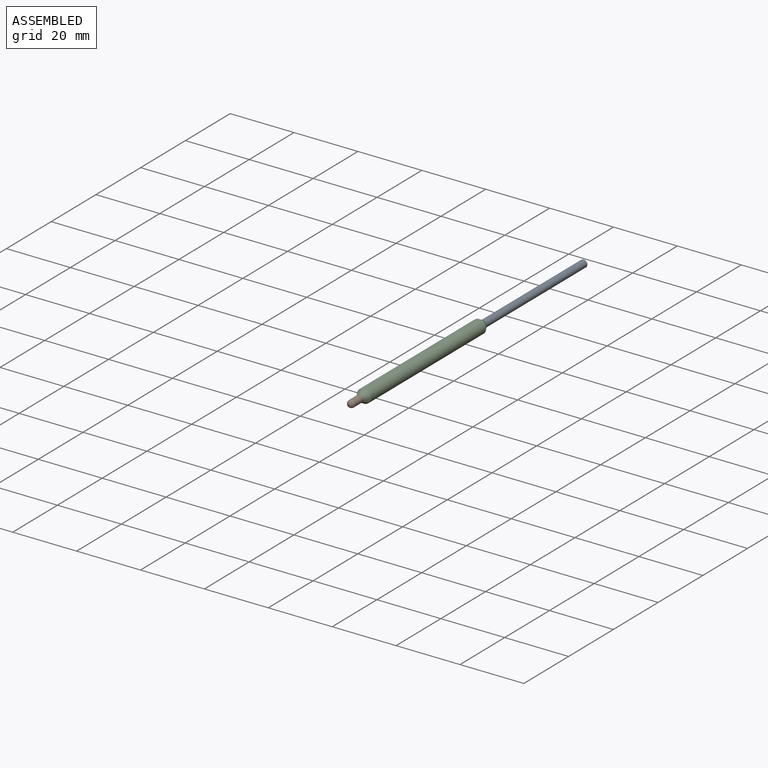
[diagram: assembled view]
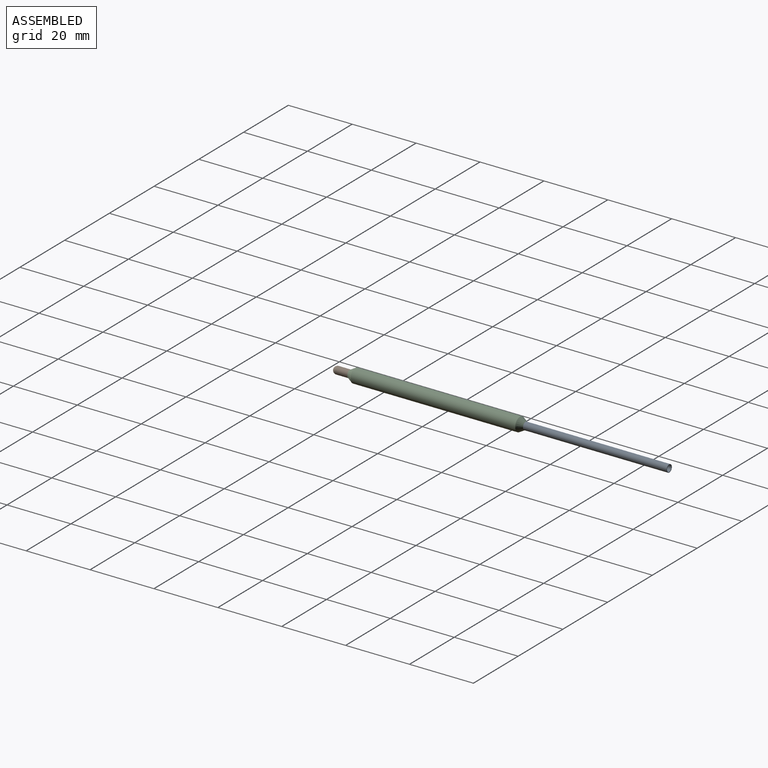
[diagram: assembled view, second angle]
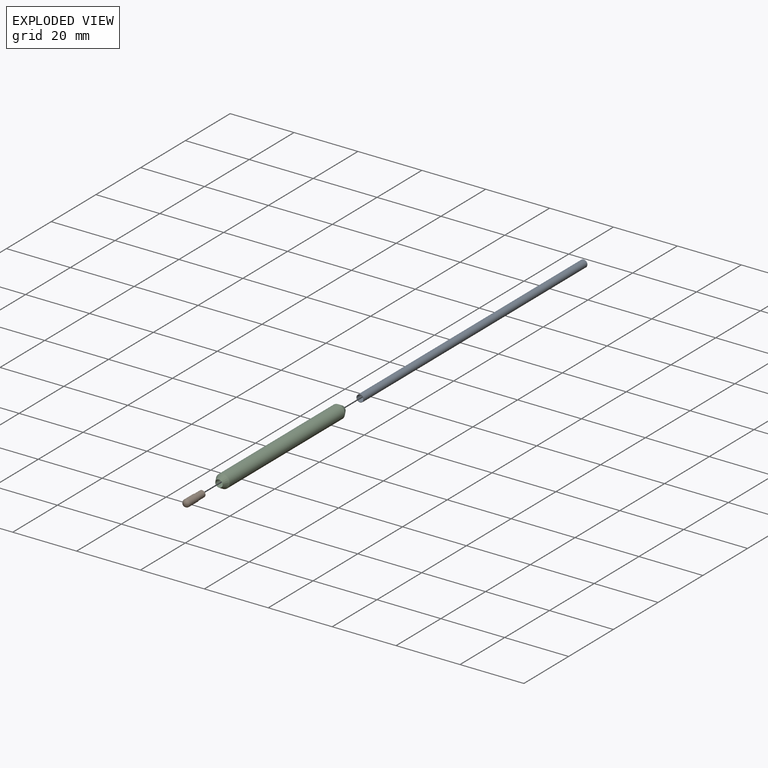
[diagram: exploded view]
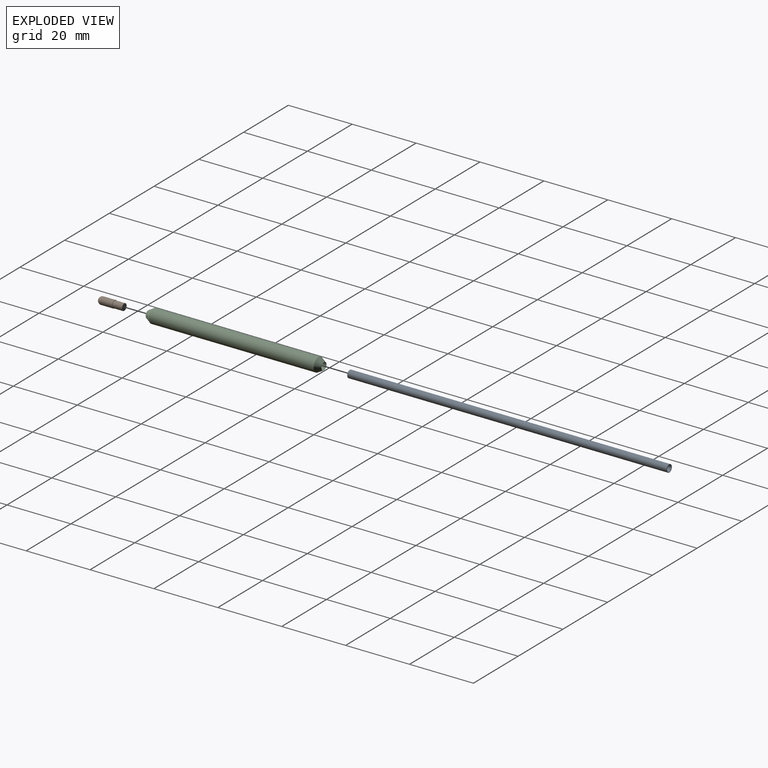
[diagram: exploded view, second angle]
ASSEMBLY  parts=3 mates=2
PART A: 4 faces, bbox 2.3x100x2.3 mm
  f0: cylinder r=1mm len=100mm, axis (0,1,0), area 628.3mm2, adj f2,f3
  f1: cylinder r=1.15mm len=100mm, axis (0,1,0), area 722.6mm2, adj f2,f3
  f2: plane 2.3x2.3mm, normal (0,-1,0), area 1mm2, adj f0,f1
  f3: plane 2.3x2.3mm, normal (0,1,0), area 1mm2, adj f0,f1
PART B: 5 faces, bbox 2.3x2.3x8 mm
  f0: cylinder r=1.05mm len=3mm, axis (0,0,-1), area 19.8mm2, adj f1,f4
  f1: plane 2.1x2.1mm, normal (0,0,-1), area 3.5mm2, adj f0
  f2: sphere r=1.15mm, area 8.3mm2, adj f3
  f3: cylinder r=1.15mm len=3.85mm, axis (0,0,-1), area 27.8mm2, adj f2,f4
  f4: plane 2.3x2.3mm, normal (0,0,-1), area 0.7mm2, adj f0,f3
PART C: 4 faces, bbox 4.3x4.3x55 mm
  f0: cone r=1.15mm half-angle=30deg, axis (0,0,1), area 20.7mm2, adj f1,f3
  f1: cylinder r=1.15mm len=55mm, axis (0,0,-1), area 397.4mm2, adj f0,f2
  f2: cone r=2.15mm half-angle=30deg, axis (0,0,-1), area 20.7mm2, adj f1,f3
  f3: cylinder r=2.15mm len=51.54mm, axis (0,0,-1), area 696.2mm2, adj f0,f2
PLACE A rot(axis=(0,-1,0),0deg) t=(-28.99,31,-6.91)mm
PLACE B rot(axis=(1,0,0),90deg) t=(-28.99,-66,-6.91)mm
PLACE C rot(axis=(-1,0,0),90deg) t=(-28.99,-70.45,-6.91)mm
MATE cylindrical A.f1 <-> C.f0  axis (0,1,0) through (-28.99,-19,-6.91)mm
MATE fastened A.f0 <-> B.f0  axis (0,1,0) through (-28.99,-69,-6.91)mm
